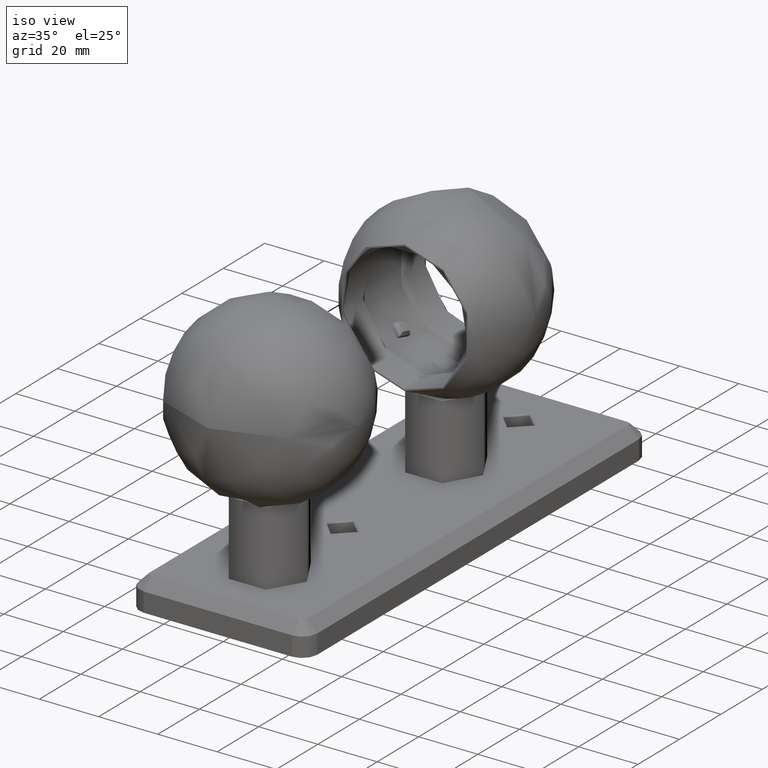
[diagram: clean part render]
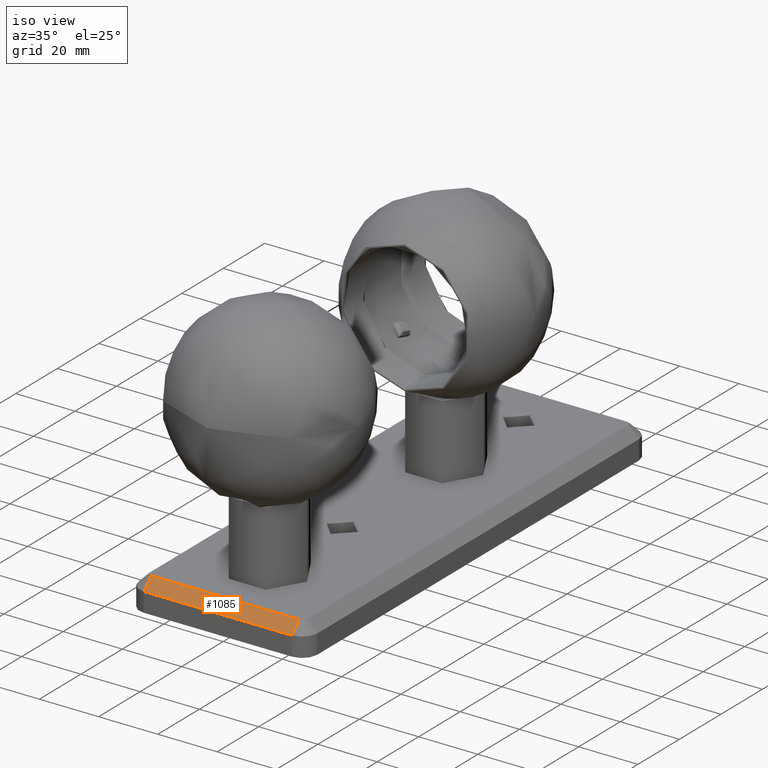
[diagram: same view with one face highlighted and labeled with its STEP entity id]
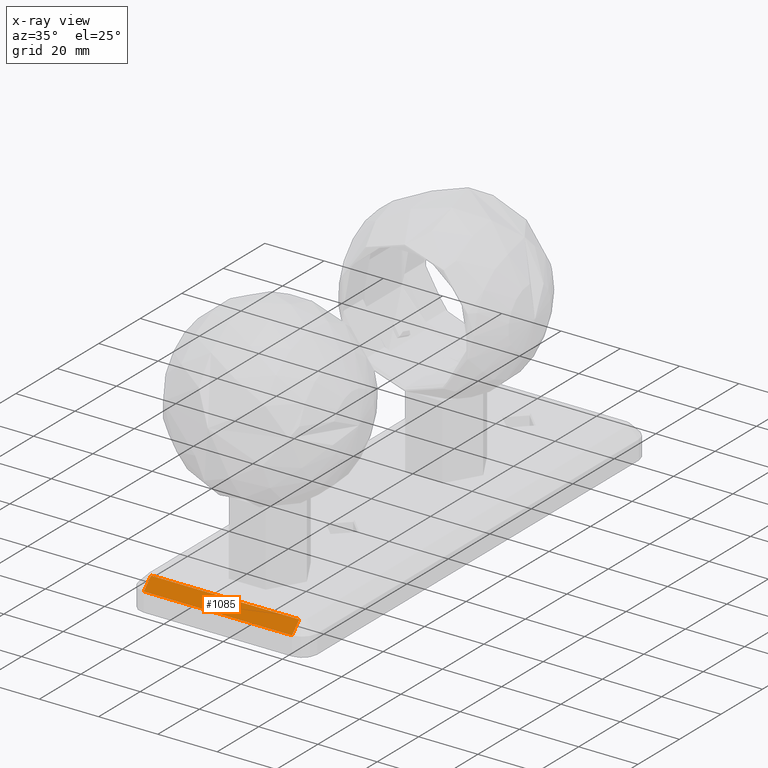
[diagram: x-ray of the same camera — body ghosted, the highlighted face saturated]
A machine part, iso view. The second image highlights one B-rep face of the part: STEP entity #1085.
The next image is the same camera in x-ray: the body ghosted, the highlighted face saturated — about 0% of this face is hidden behind the body in this view.
In plain terms, the highlighted planar face has unit normal (0, -0.7071, 0.7071).
Its self-contained STEP definition (entity closure, byte-faithful):
#285 = DIRECTION ( 'NONE',  ( -1.000000000000000000, 0.0000000000000000000, 0.0000000000000000000 ) ) ;
#980 = DIRECTION ( 'NONE',  ( 1.000000000000000000, 0.0000000000000000000, 0.0000000000000000000 ) ) ;
#1061 = PLANE ( 'NONE',  #5476 ) ;
#1085 = ADVANCED_FACE ( 'NONE', ( #1533 ), #1061, .T. ) ;
#1533 = FACE_OUTER_BOUND ( 'NONE', #1776, .T. ) ;
#1710 = CARTESIAN_POINT ( 'NONE',  ( 24.99999999999996800, -82.49999999999997200, 6.500000000000009800 ) ) ;
#1741 = CARTESIAN_POINT ( 'NONE',  ( -24.99999999999996100, -79.00000000000000000, 10.00000000000000000 ) ) ;
#1776 = EDGE_LOOP ( 'NONE', ( #15598, #18867, #8410, #6744 ) ) ;
#4429 = VERTEX_POINT ( 'NONE', #12190 ) ;
#5322 = CARTESIAN_POINT ( 'NONE',  ( 24.99999999999996800, -82.49999999999997200, 6.500000000000009800 ) ) ;
#5476 = AXIS2_PLACEMENT_3D ( 'NONE', #10154, #14896, #19482 ) ;
#5674 = CARTESIAN_POINT ( 'NONE',  ( 24.99999999999996800, -79.00000000000000000, 10.00000000000000000 ) ) ;
#5736 = VECTOR ( 'NONE', #285, 1000.000000000000000 ) ;
#6455 = LINE ( 'NONE', #14203, #5736 ) ;
#6744 = ORIENTED_EDGE ( 'NONE', *, *, #16449, .F. ) ;
#7938 = EDGE_CURVE ( 'NONE', #16710, #4429, #14089, .T. ) ;
#8293 = EDGE_CURVE ( 'NONE', #12180, #12713, #18190, .T. ) ;
#8410 = ORIENTED_EDGE ( 'NONE', *, *, #7938, .T. ) ;
#8968 = CARTESIAN_POINT ( 'NONE',  ( -24.99999999999996100, -82.49999999999997200, 6.500000000000009800 ) ) ;
#9071 = VECTOR ( 'NONE', #12270, 1000.000000000000100 ) ;
#10154 = CARTESIAN_POINT ( 'NONE',  ( 25.00000000000000000, -79.00000000000000000, 10.00000000000000000 ) ) ;
#10601 = CARTESIAN_POINT ( 'NONE',  ( -24.99999999999996100, -79.00000000000000000, 10.00000000000000000 ) ) ;
#11168 = DIRECTION ( 'NONE',  ( 0.0000000000000000000, 0.7071067811865461300, 0.7071067811865489100 ) ) ;
#12110 = VECTOR ( 'NONE', #980, 1000.000000000000000 ) ;
#12180 = VERTEX_POINT ( 'NONE', #1741 ) ;
#12190 = CARTESIAN_POINT ( 'NONE',  ( 24.99999999999996800, -79.00000000000000000, 10.00000000000000000 ) ) ;
#12270 = DIRECTION ( 'NONE',  ( 0.0000000000000000000, -0.7071067811865461300, -0.7071067811865489100 ) ) ;
#12713 = VERTEX_POINT ( 'NONE', #8968 ) ;
#13410 = EDGE_CURVE ( 'NONE', #16710, #12713, #6455, .T. ) ;
#14089 = LINE ( 'NONE', #5322, #17929 ) ;
#14203 = CARTESIAN_POINT ( 'NONE',  ( -24.99999999999996100, -82.49999999999997200, 6.500000000000009800 ) ) ;
#14896 = DIRECTION ( 'NONE',  ( 0.0000000000000000000, -0.7071067811865489100, 0.7071067811865461300 ) ) ;
#15503 = LINE ( 'NONE', #5674, #12110 ) ;
#15598 = ORIENTED_EDGE ( 'NONE', *, *, #8293, .T. ) ;
#16449 = EDGE_CURVE ( 'NONE', #12180, #4429, #15503, .T. ) ;
#16710 = VERTEX_POINT ( 'NONE', #1710 ) ;
#17929 = VECTOR ( 'NONE', #11168, 1000.000000000000100 ) ;
#18190 = LINE ( 'NONE', #10601, #9071 ) ;
#18867 = ORIENTED_EDGE ( 'NONE', *, *, #13410, .F. ) ;
#19482 = DIRECTION ( 'NONE',  ( -1.000000000000000000, 0.0000000000000000000, 0.0000000000000000000 ) ) ;